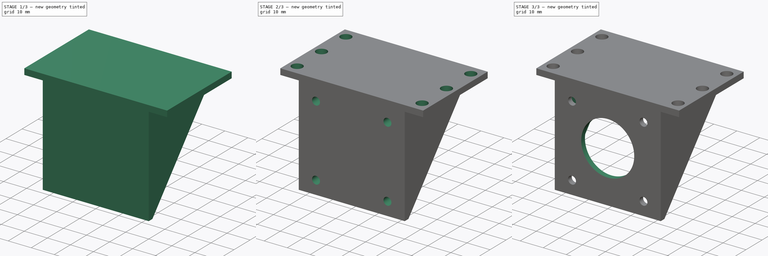
[diagram: build sequence overview — one tinted view per stage of 3, left to right]
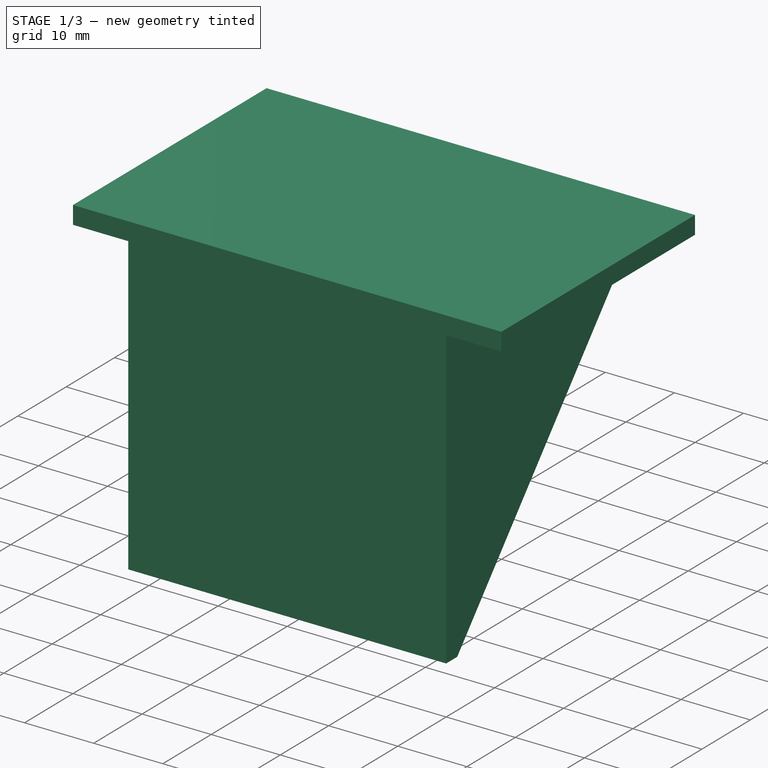
[diagram: stage 1 of 3 — iso view after this stage's code; geometry added in this stage tinted green]
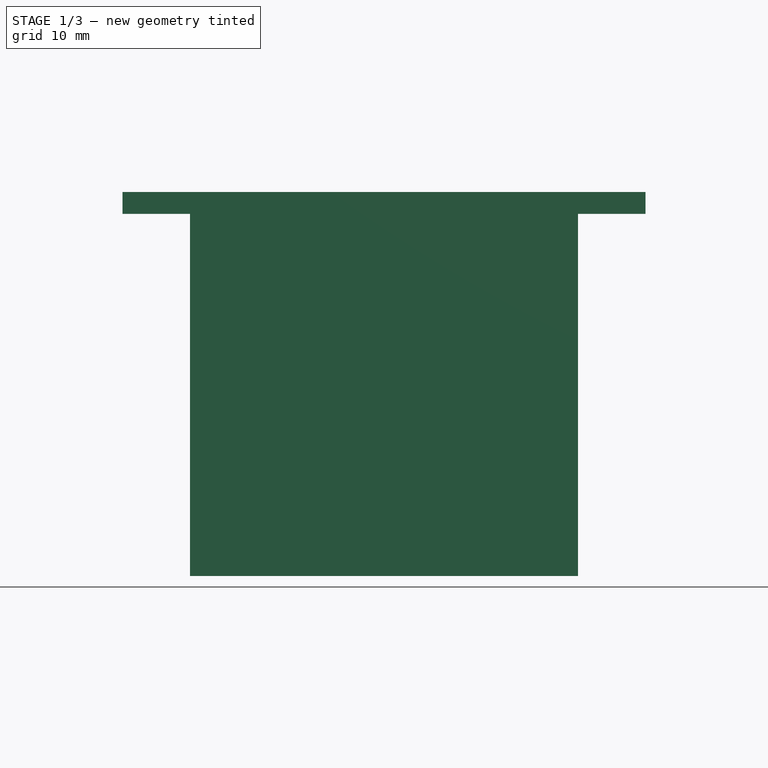
[diagram: stage 1 of 3 — front view after this stage's code; geometry added in this stage tinted green]
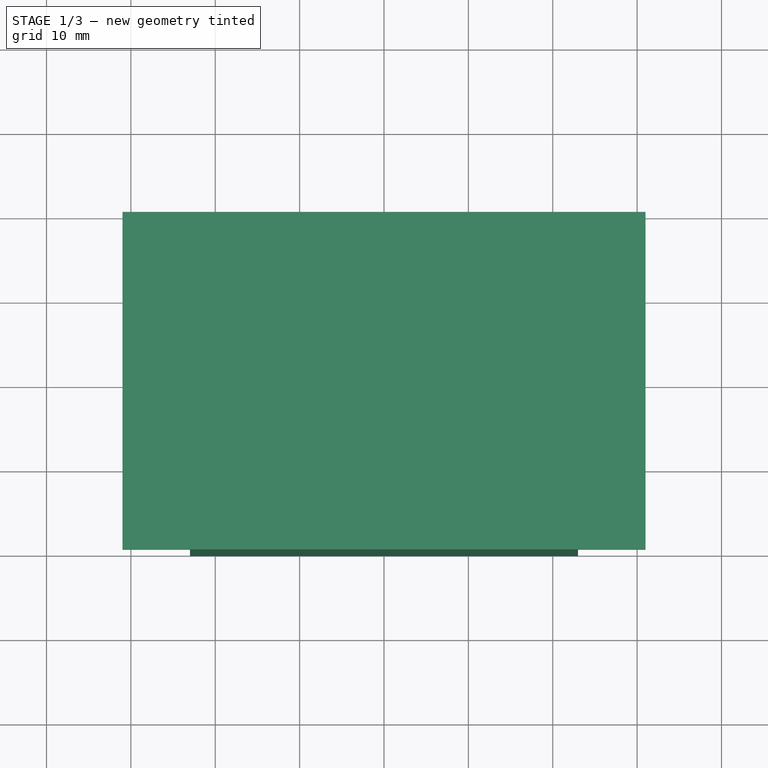
[diagram: stage 1 of 3 — top view after this stage's code; geometry added in this stage tinted green]
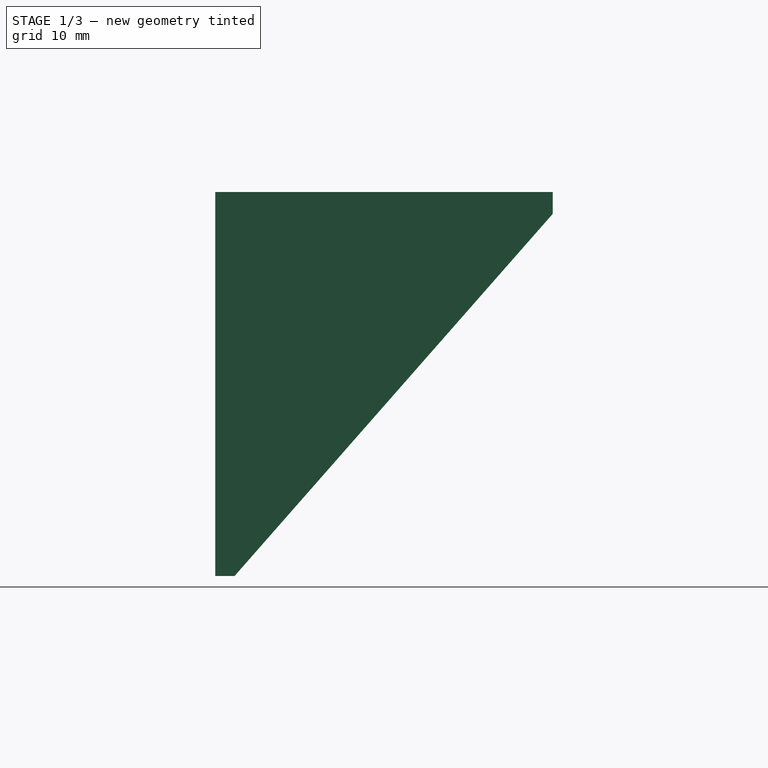
[diagram: stage 1 of 3 — right view after this stage's code; geometry added in this stage tinted green]
FCSTD DOCUMENT  (FreeCAD 0.19R24366 (Git))
Label: bracket_extruder_plastic_black
License: All rights reserved
LicenseURL: http://en.wikipedia.org/wiki/All_rights_reserved
objects: Sketcher::SketchObject×6, PartDesign::Pad×2, PartDesign::Hole×2, PartDesign::Pocket×2, PartDesign::CoordinateSystem×2, PartDesign::Mirrored×1, PartDesign::Body×1
note: 22 computed .brp shape members not serialized (recipe doc carries the construction recipe); baked Part::Feature solids carry a one-line shape summary decoded from their .brp

FEATURE [Sketcher::SketchObject] Sketch
  FullyConstrained = true
  sketch-geometry (4):
    g0: LineSegment StartX=-31 StartY=20 StartZ=0 EndX=31 EndY=20 EndZ=0
    g1: LineSegment StartX=31 StartY=20 StartZ=0 EndX=31 EndY=-20 EndZ=0
    g2: LineSegment StartX=31 StartY=-20 StartZ=0 EndX=-31 EndY=-20 EndZ=0
    g3: LineSegment StartX=-31 StartY=-20 StartZ=0 EndX=-31 EndY=20 EndZ=0
  constraints (11):
    c: Coincident(g0,g1)
    c: Coincident(g1,g2)
    c: Coincident(g2,g3)
    c: Coincident(g3,g0)
    c: Horizontal(g0)
    c: Horizontal(g2)
    c: Vertical(g1)
    c: Vertical(g3)
    c: Symmetric(g0,g1,g-1)
    c: DistanceY(g1,g1) = 40  'top_flange_y_dim'
    c: DistanceX(g0,g0) = 62  'top_flange_x_dim'
FEATURE [PartDesign::Pad] Pad
  Direction = (1,1,1)
  Length = 2.59
  Length2 = 100
  Profile = -> Sketch
  Type = 0
FEATURE [Sketcher::SketchObject] Sketch001
  ExternalGeometry = -> [Pad]
  FullyConstrained = true
  MapMode = 5
  Placement = pos=(0,0,0) rot=(0.57735,0.57735,0.57735;2.0944rad)
  Support = -> [YZ_Plane]
  sketch-geometry (4):
    g0: LineSegment StartX=-20 StartY=-42.926 StartZ=0 EndX=-17.714 EndY=-42.926 EndZ=0
    g1: LineSegment StartX=20 StartY=-3.1e-15 StartZ=0 EndX=-17.714 EndY=-42.926 EndZ=0
    g2: LineSegment StartX=20 StartY=-3.1e-15 StartZ=0 EndX=-20 EndY=2.59 EndZ=0
    g3: LineSegment StartX=-20 StartY=2.59 StartZ=0 EndX=-20 EndY=-42.926 EndZ=0
  constraints (10):
    c: Coincident(g1,g0)
    c: DistanceX(g0,g0) = 2.286
    c: DistanceY(g0,g-1) = 42.926
    c: Horizontal(g0)
    c: Coincident(g2,g1)
    c: Coincident(g3,g2)
    c: Coincident(g3,g0)
    c: Vertical(g3)
    c: Coincident(g-3,g2)
    c: Coincident(g1,g-4)
FEATURE [PartDesign::Pad] Pad001
  BaseFeature = -> Pad
  Direction = (1,1,1)
  Length = 46
  Length2 = -21.44
  Midplane = true
  Profile = -> Sketch001
  Type = 0
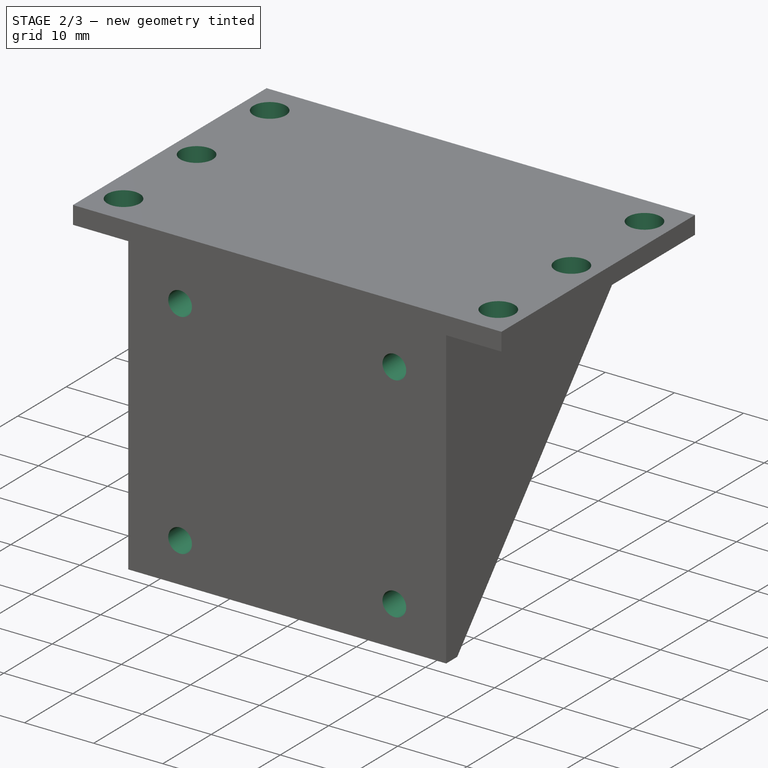
[diagram: stage 2 of 3 — iso view after this stage's code; geometry added in this stage tinted green]
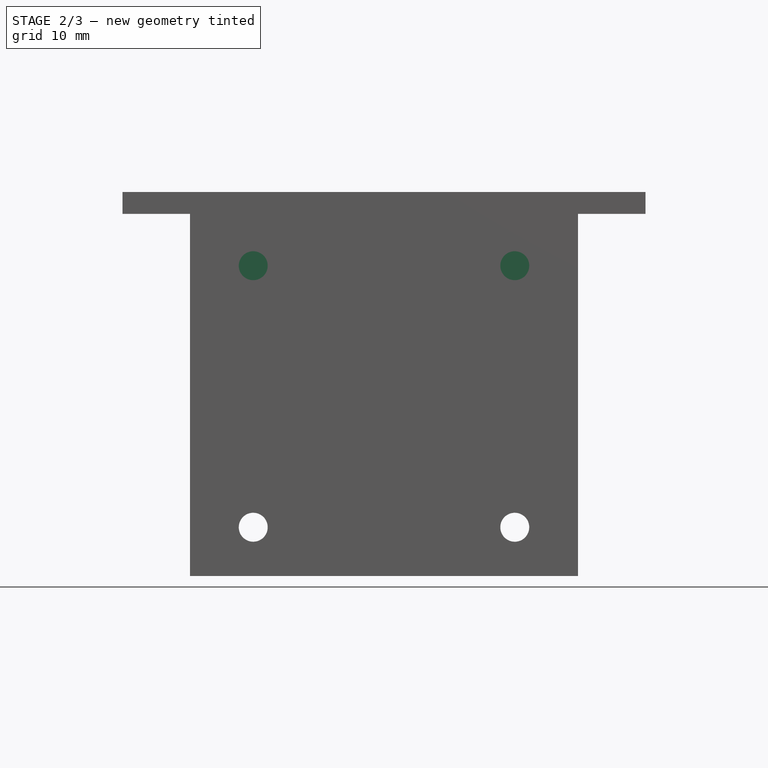
[diagram: stage 2 of 3 — front view after this stage's code; geometry added in this stage tinted green]
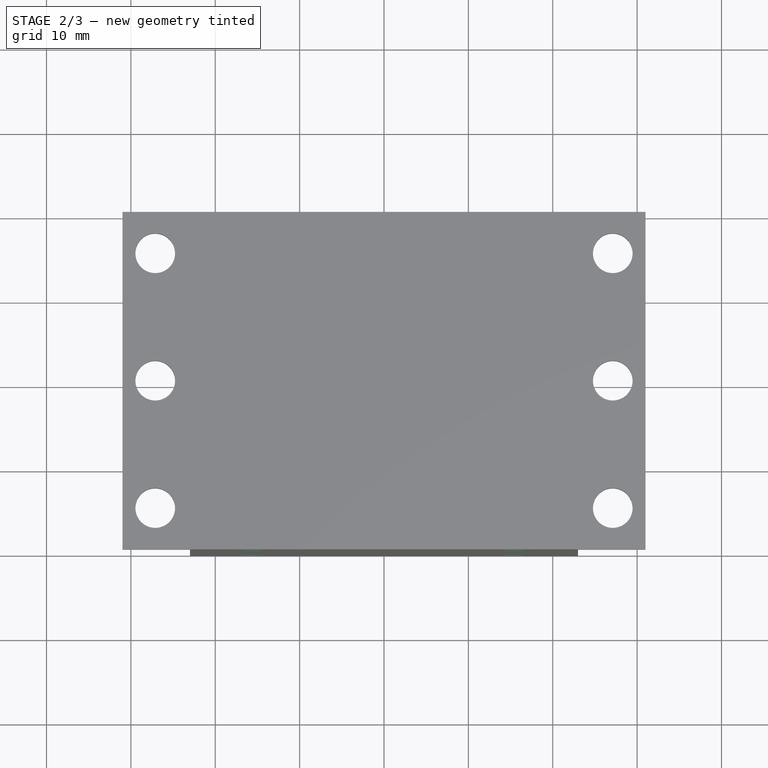
[diagram: stage 2 of 3 — top view after this stage's code; geometry added in this stage tinted green]
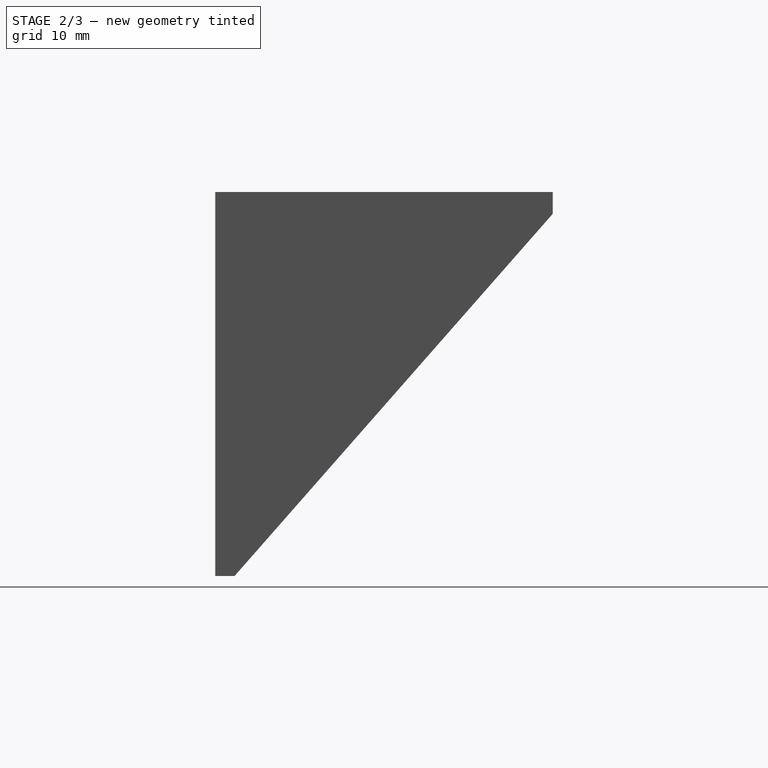
[diagram: stage 2 of 3 — right view after this stage's code; geometry added in this stage tinted green]
FEATURE [Sketcher::SketchObject] Sketch003
  FullyConstrained = true
  MapMode = 5
  Support = -> [XY_Plane]
  expr: Constraints[7] = (1.95in + 0.185in) / 2
  expr: Constraints[6] = 1.004in + 0.185in
  sketch-geometry (3):
    g0: Circle CenterX=27.1145 CenterY=15.1003 CenterZ=0 NormalX=0 NormalY=0 NormalZ=1 AngleXU=0 Radius=1
    g1: Circle CenterX=27.1145 CenterY=-15.1003 CenterZ=0 NormalX=0 NormalY=0 NormalZ=1 AngleXU=0 Radius=1
    g2: Circle CenterX=27.1145 CenterY=0 CenterZ=0 NormalX=0 NormalY=0 NormalZ=1 AngleXU=0 Radius=1
  constraints (8):
    c: Equal(g0,g1)
    c: Equal(g1,g2)
    c: Diameter(g0) = 2
    c: Horizontal(g2,g-1)
    c: Vertical(g2,g1)
    c: Symmetric(g0,g1,g2)
    c: DistanceY(g1,g0) = 30.2006
    c: DistanceX(g-1,g2) = 27.1145
FEATURE [PartDesign::Hole] Hole
  BaseFeature = -> Pad001
  Depth = 25
  DepthType = 1
  Diameter = 4.699
  DrillForDepth = false
  DrillPoint = 1
  DrillPointAngle = 118
  HoleCutCountersinkAngle = 90
  HoleCutCustomValues = false
  HoleCutDepth = 0
  HoleCutDiameter = 6.1
  HoleCutType = 0
  ModelActualThread = false
  Profile = -> Sketch003
  Refine = true
  Reversed = true
  Tapered = false
  TaperedAngle = 90
  ThreadAngle = 0
  ThreadClass = 0
  ThreadCutOffInner = 0
  ThreadCutOffOuter = 0
  ThreadDirection = 0
  ThreadFit = 0
  ThreadPitch = 0
  ThreadSize = 0
  ThreadType = 0
  Threaded = false
FEATURE [PartDesign::Mirrored] Mirrored001
  BaseFeature = -> Hole
  MirrorPlane = -> YZ_Plane
  Originals = -> [Hole]
  Refine = true
FEATURE [Sketcher::SketchObject] Sketch004
  FullyConstrained = false
  MapMode = 5
  Placement = pos=(0,0,0) rot=(1,0,0;1.5708rad)
  Support = -> [XZ_Plane]
  sketch-geometry (5):
    g0: Circle CenterX=-15.5 CenterY=-6.1468 CenterZ=0 NormalX=0 NormalY=0 NormalZ=1 AngleXU=0 Radius=10
    g1: Circle CenterX=-15.5 CenterY=-37.1468 CenterZ=0 NormalX=0 NormalY=0 NormalZ=1 AngleXU=0 Radius=10
    g2: Circle CenterX=15.5 CenterY=-37.1468 CenterZ=0 NormalX=0 NormalY=0 NormalZ=1 AngleXU=0 Radius=10
    g3: Circle CenterX=15.5 CenterY=-6.1468 CenterZ=0 NormalX=0 NormalY=0 NormalZ=1 AngleXU=0 Radius=10
    g4: LineSegment StartX=0 StartY=0 StartZ=0 EndX=0 EndY=-63.2558 EndZ=0
  constraints (13):
    c: Equal(g0,g3)
    c: Equal(g2,g1)
    c: Diameter(g3) = 20
    c: Equal(g0,g1)
    c: Vertical(g3,g2)
    c: Vertical(g0,g1)
    c: Horizontal(g1,g2)
    c: Coincident(g4,g-1)
    c: Vertical(g4)
    c: Symmetric(g0,g3,g4)
    c: DistanceX(g1,g2) = 31
    c: DistanceY(g2,g3) = 31
    c: DistanceY(g3,g-1) = 6.1468
FEATURE [PartDesign::Hole] Hole001
  BaseFeature = -> Mirrored001
  Depth = 25
  DepthType = 1
  Diameter = 3.429
  DrillForDepth = false
  DrillPoint = 1
  DrillPointAngle = 118
  HoleCutCountersinkAngle = 90
  HoleCutCustomValues = false
  HoleCutDepth = 0
  HoleCutDiameter = 6.1
  HoleCutType = 0
  ModelActualThread = false
  Profile = -> Sketch004
  Refine = true
  Reversed = true
  Tapered = false
  TaperedAngle = 90
  ThreadAngle = 0
  ThreadClass = 0
  ThreadCutOffInner = 0
  ThreadCutOffOuter = 0
  ThreadDirection = 0
  ThreadFit = 0
  ThreadPitch = 0
  ThreadSize = 0
  ThreadType = 0
  Threaded = false
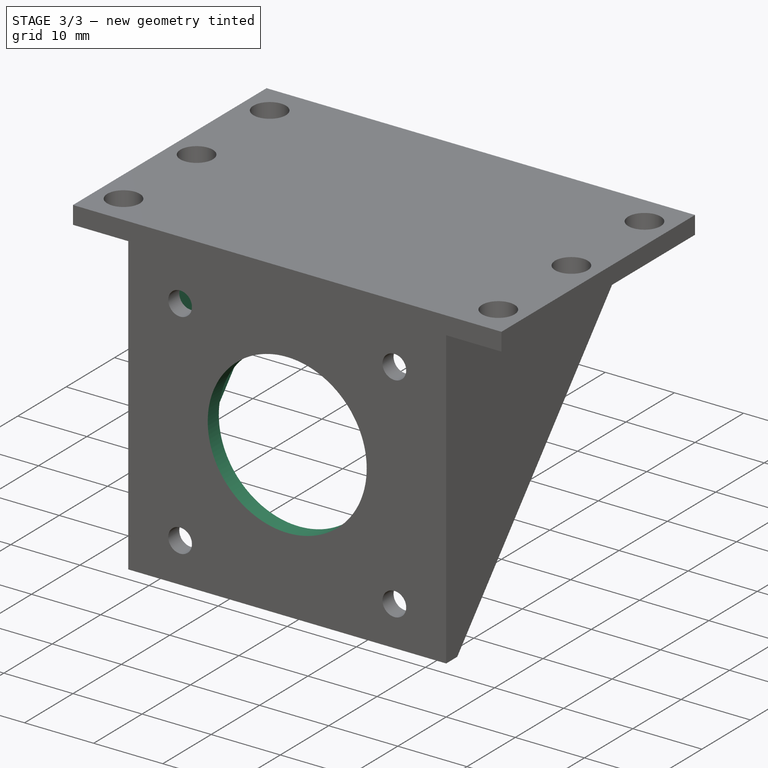
[diagram: stage 3 of 3 — iso view after this stage's code; geometry added in this stage tinted green]
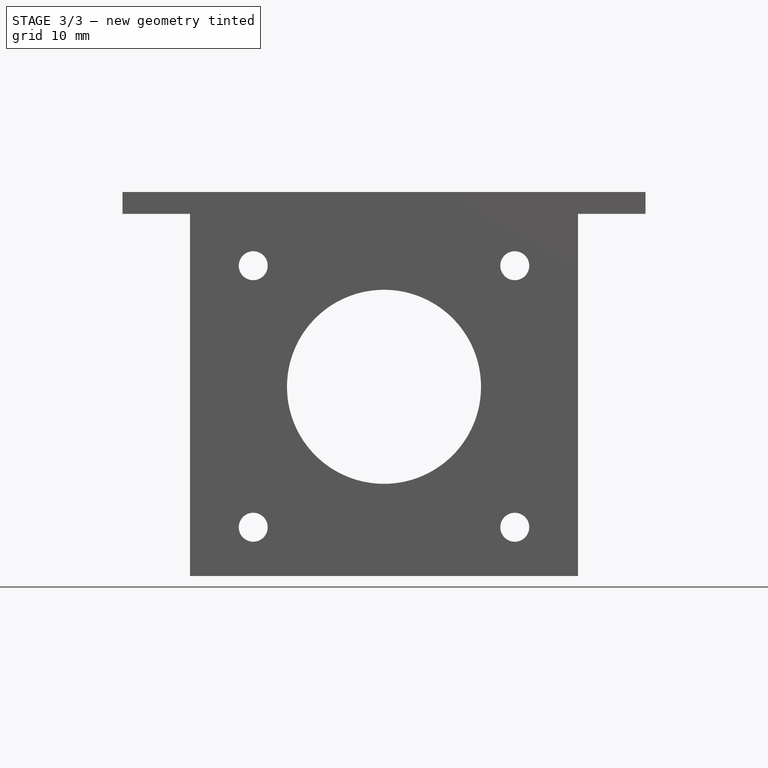
[diagram: stage 3 of 3 — front view after this stage's code; geometry added in this stage tinted green]
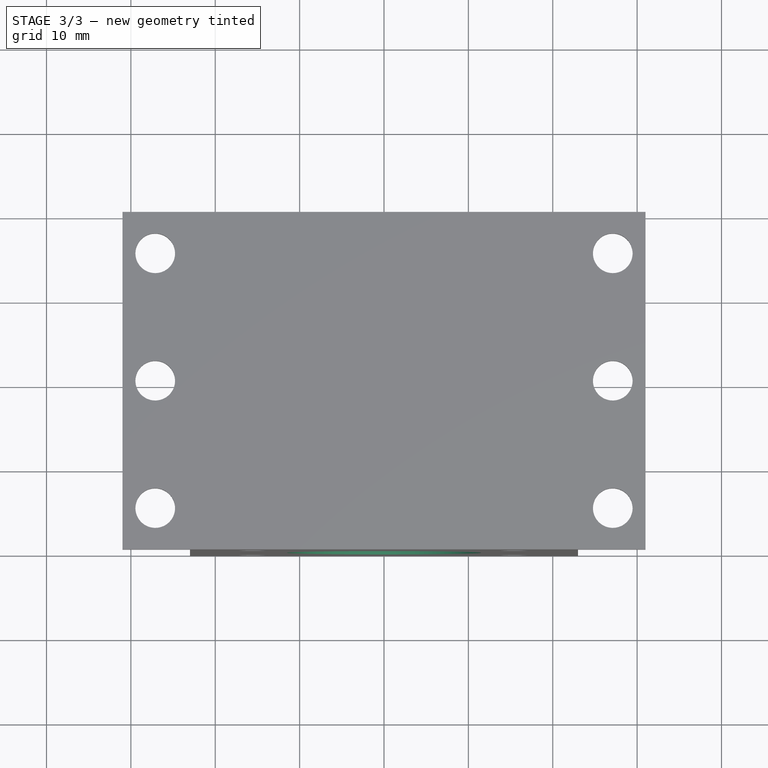
[diagram: stage 3 of 3 — top view after this stage's code; geometry added in this stage tinted green]
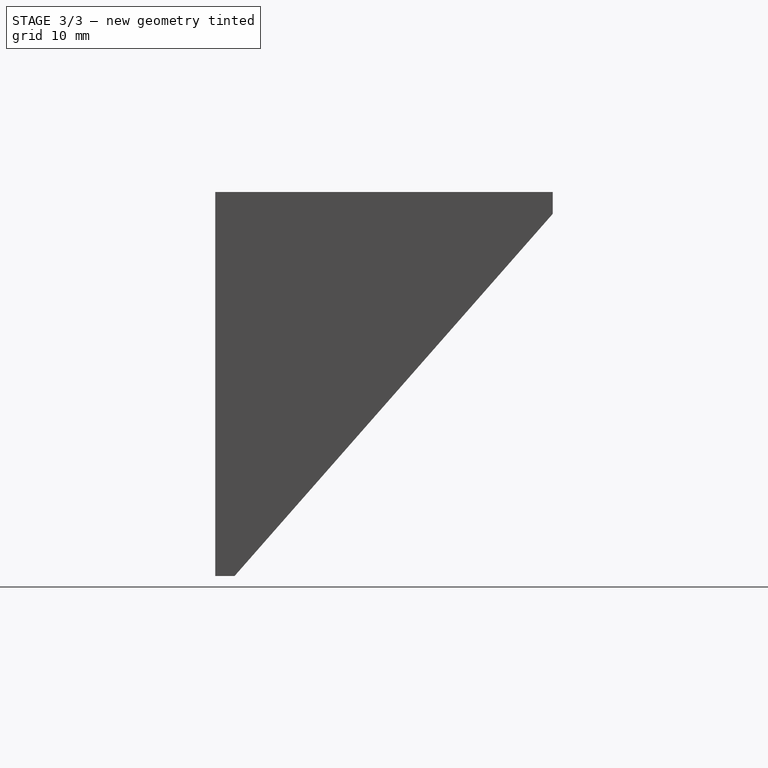
[diagram: stage 3 of 3 — right view after this stage's code; geometry added in this stage tinted green]
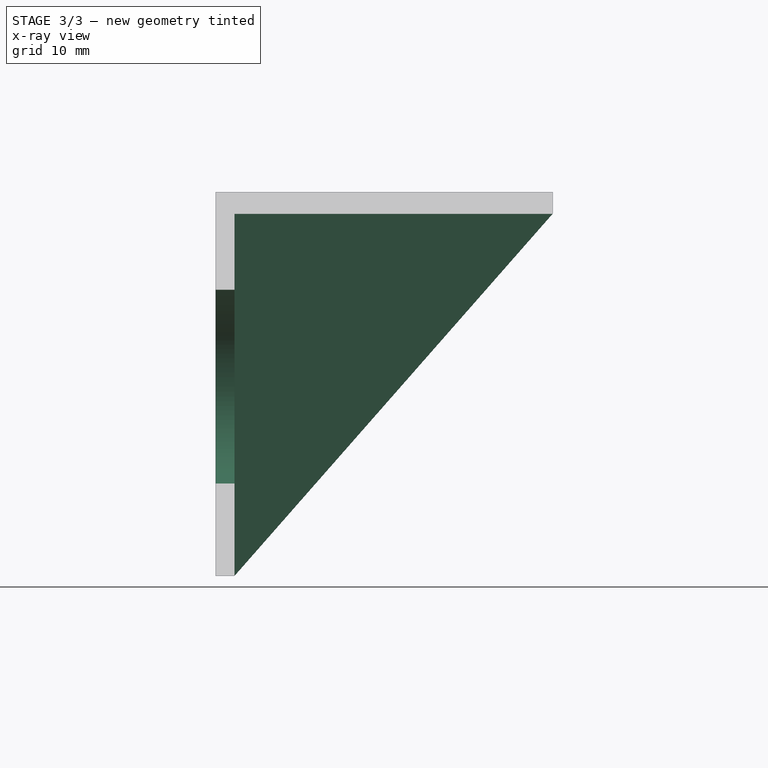
[diagram: stage 3 of 3 — x-ray composite at the right view; earlier geometry ghosted, this stage's added geometry solid]
FEATURE [Sketcher::SketchObject] Sketch005
  FullyConstrained = true
  MapMode = 5
  Placement = pos=(0,0,0) rot=(1,0,0;1.5708rad)
  Support = -> [XZ_Plane]
  expr: Constraints[2] = 20.5
  sketch-geometry (1):
    g0: Circle CenterX=0 CenterY=-20.5 CenterZ=0 NormalX=0 NormalY=0 NormalZ=1 AngleXU=0 Radius=11.5
  constraints (3):
    c: Diameter(g0) = 23
    c: Vertical(g0,g-1)
    c: DistanceY(g0,g-1) = 20.5
FEATURE [PartDesign::Pocket] Pocket
  BaseFeature = -> Hole001
  Length = 5
  Length2 = 100
  Profile = -> Sketch005
  Refine = true
  Reversed = true
  Type = 1
FEATURE [Sketcher::SketchObject] Sketch006
  FullyConstrained = true
  MapMode = 5
  Placement = pos=(0,0,0) rot=(1,0,0;1.5708rad)
  Support = -> [XZ_Plane]
  sketch-geometry (4):
    g0: LineSegment StartX=21.25 StartY=0 StartZ=0 EndX=21.25 EndY=-100 EndZ=0
    g1: LineSegment StartX=21.25 StartY=-100 StartZ=0 EndX=-21.25 EndY=-100 EndZ=0
    g2: LineSegment StartX=-21.25 StartY=-100 StartZ=0 EndX=-21.25 EndY=0 EndZ=0
    g3: LineSegment StartX=-21.25 StartY=0 StartZ=0 EndX=21.25 EndY=0 EndZ=0
  constraints (11):
    c: Coincident(g0,g1)
    c: Coincident(g1,g2)
    c: Horizontal(g1)
    c: Vertical(g0)
    c: Vertical(g2)
    c: Coincident(g3,g2)
    c: Coincident(g3,g0)
    c: Horizontal(g3)
    c: Symmetric(g2,g0,g-1)
    c: DistanceX(g1,g1) = 42.5
    c: DistanceY(g0,g0) = 100
FEATURE [PartDesign::Pocket] Pocket001
  BaseFeature = -> Pocket
  Length = 100
  Length2 = 17.714
  Profile = -> Sketch006
  Refine = true
  Type = 4
  expr: Length2 = 18.1795mm - 0.4655mm
FEATURE [PartDesign::CoordinateSystem] Local_CS
  AttacherType = Attacher::AttachEngine3D
  MapMode = 11
  Placement = pos=(0,-17.714,-20.5) rot=(-0.57735,0.57735,0.57735;2.0944rad)
  Support = -> [Pocket001]
FEATURE [PartDesign::CoordinateSystem] Local_CS001
  AttacherType = Attacher::AttachEngine3D
  MapMode = 11
  Placement = pos=(0,-20,-20.5) rot=(-0.57735,0.57735,0.57735;2.0944rad)
  Support = -> [Pocket001]
FEATURE [PartDesign::Body] Body
  Group = -> [Sketch,Pad,Sketch001,Pad001,Sketch003,Hole,Mirrored001,Sketch004,Hole001,Sketch005,Pocket,Sketch006,Pocket001,Local_CS,Local_CS001]
  Origin = -> Origin
  Tip = -> Pocket001
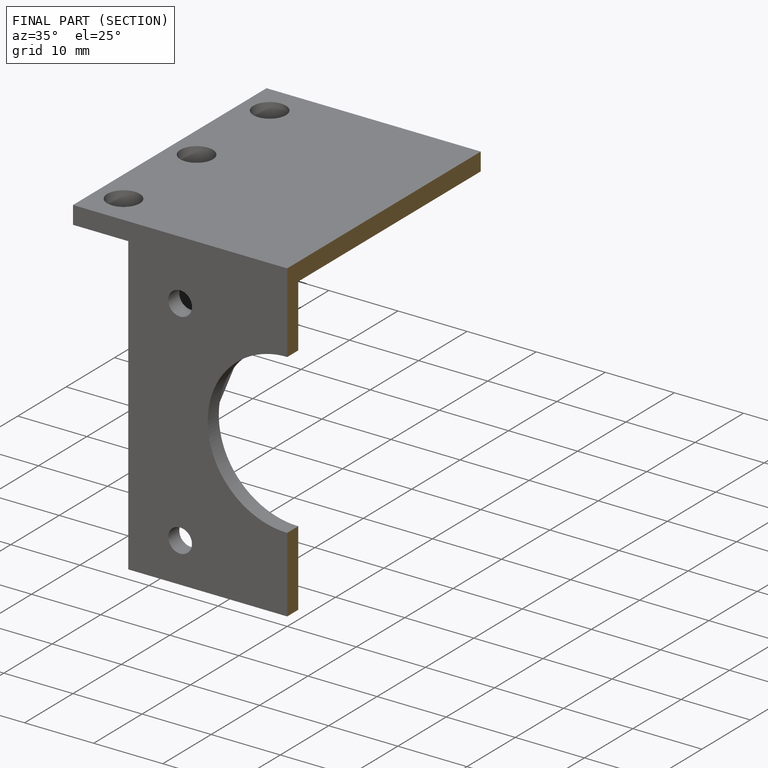
[diagram: finished part — half-section view (interior)]
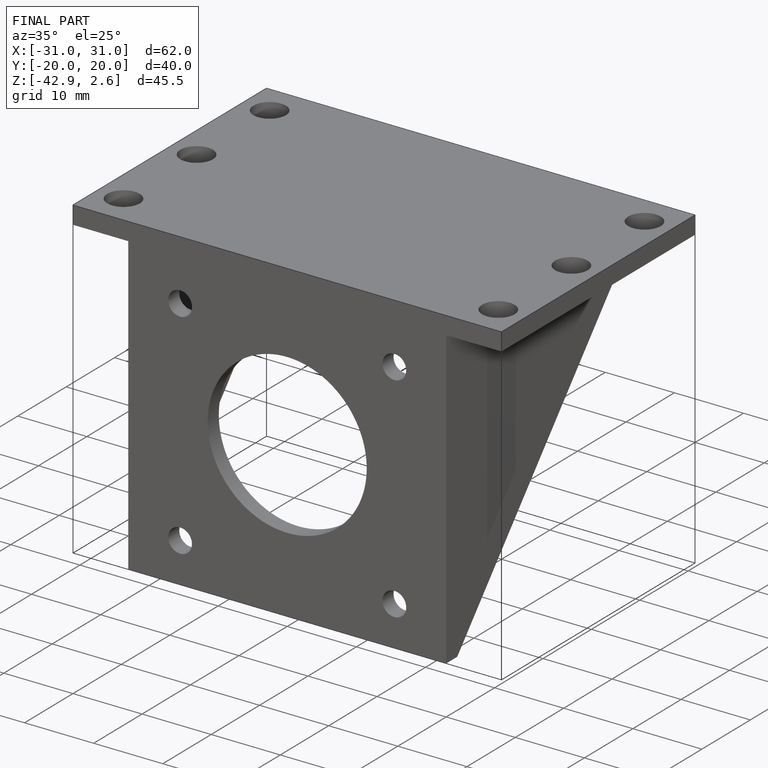
[diagram: finished part — iso view with bounding-box wireframe]
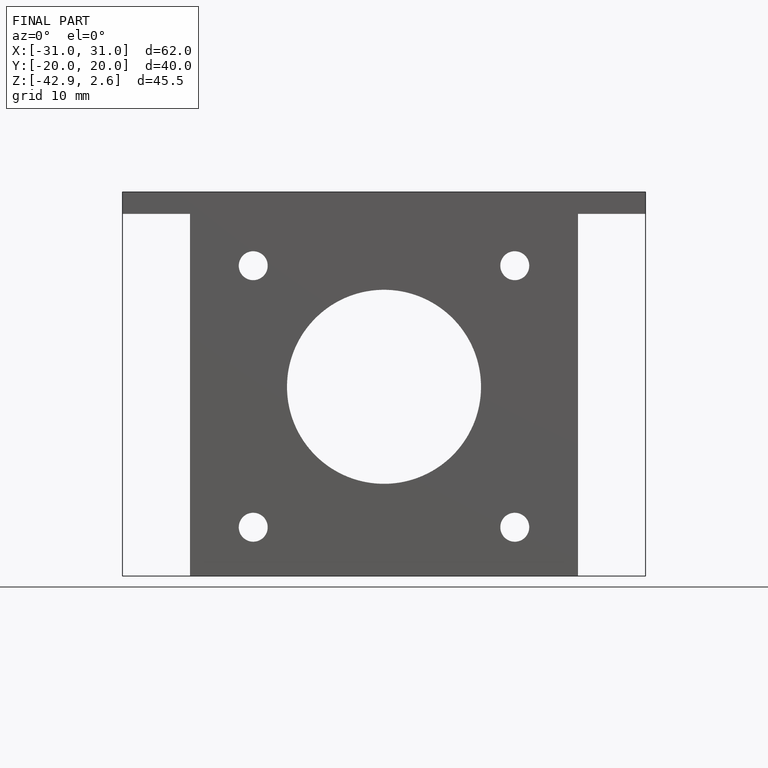
[diagram: finished part — front view with bounding-box wireframe]
